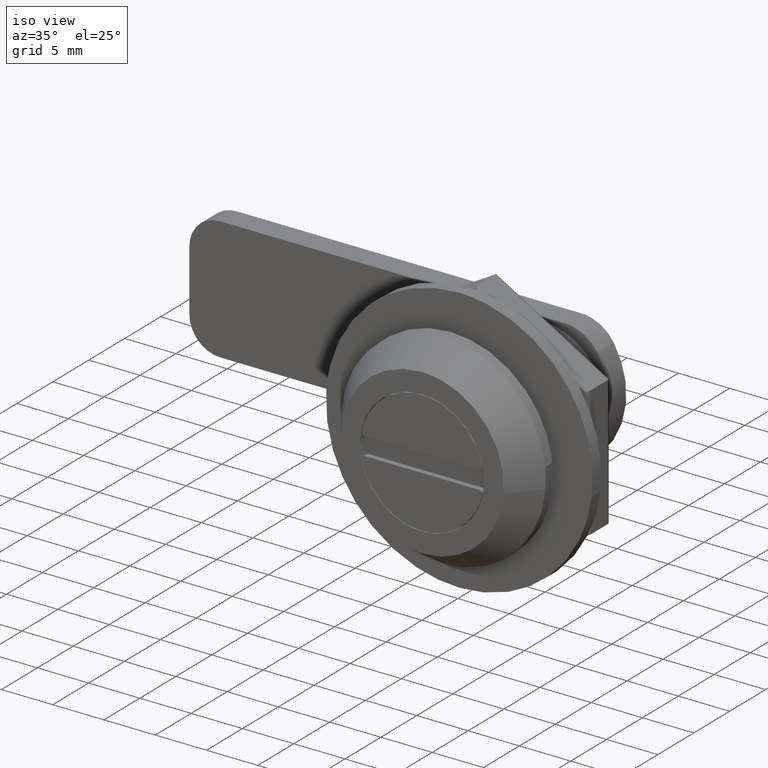
[diagram: clean part render]
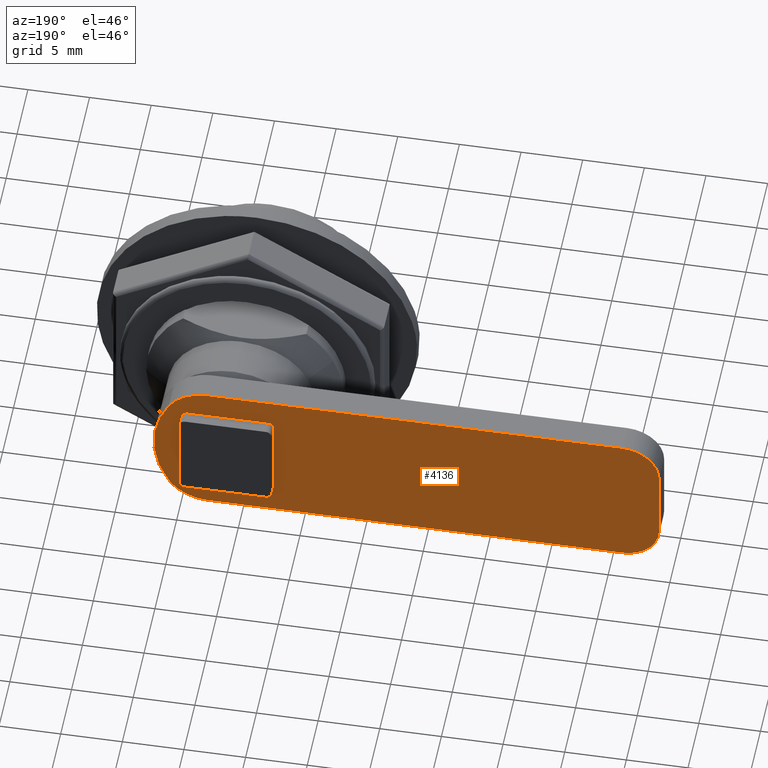
[diagram: tour spotlight — one face highlighted and labeled with its STEP entity id]
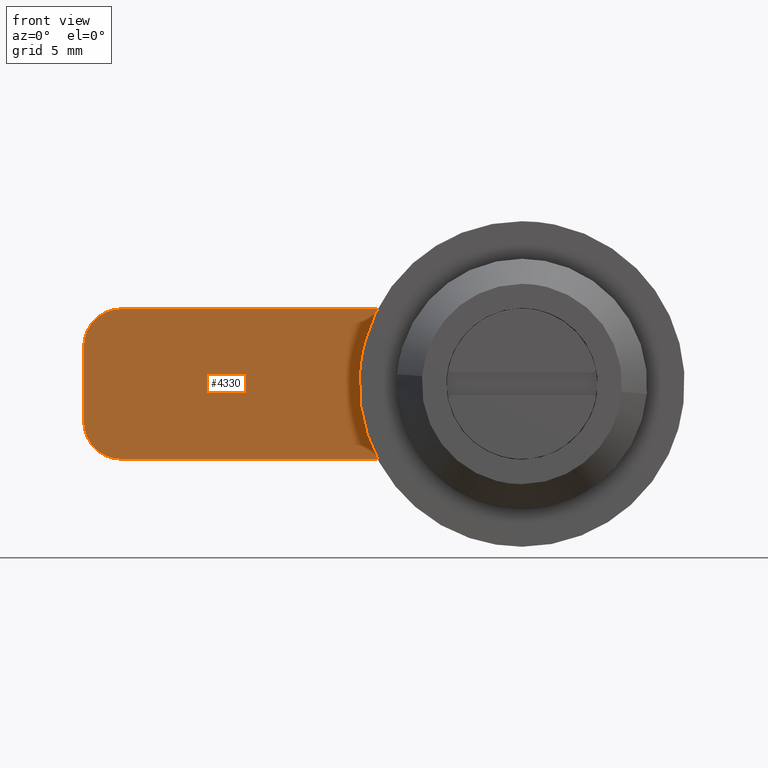
[diagram: tour spotlight — one face highlighted and labeled with its STEP entity id]
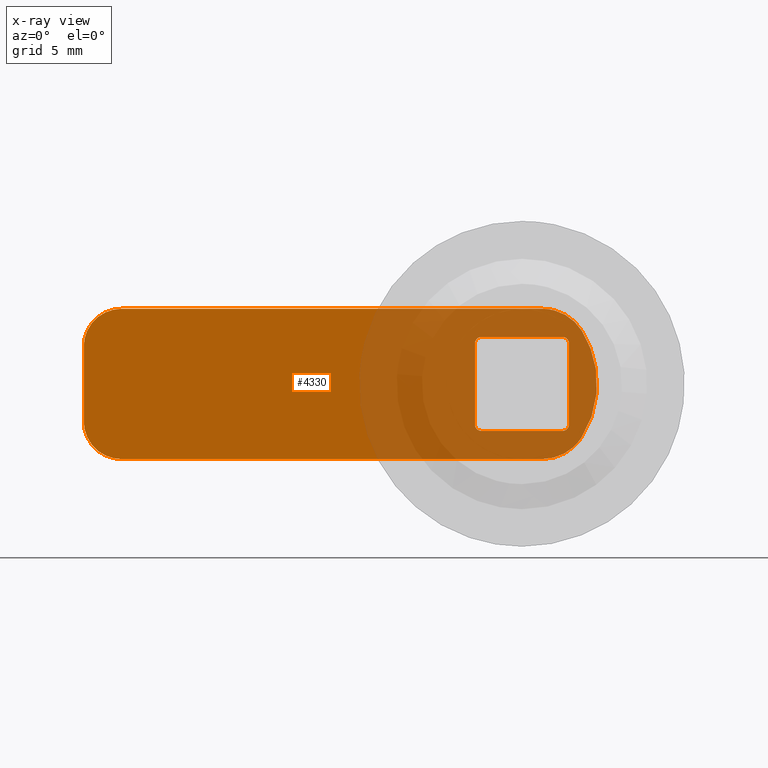
[diagram: x-ray of the same camera — body ghosted, this tour face saturated]
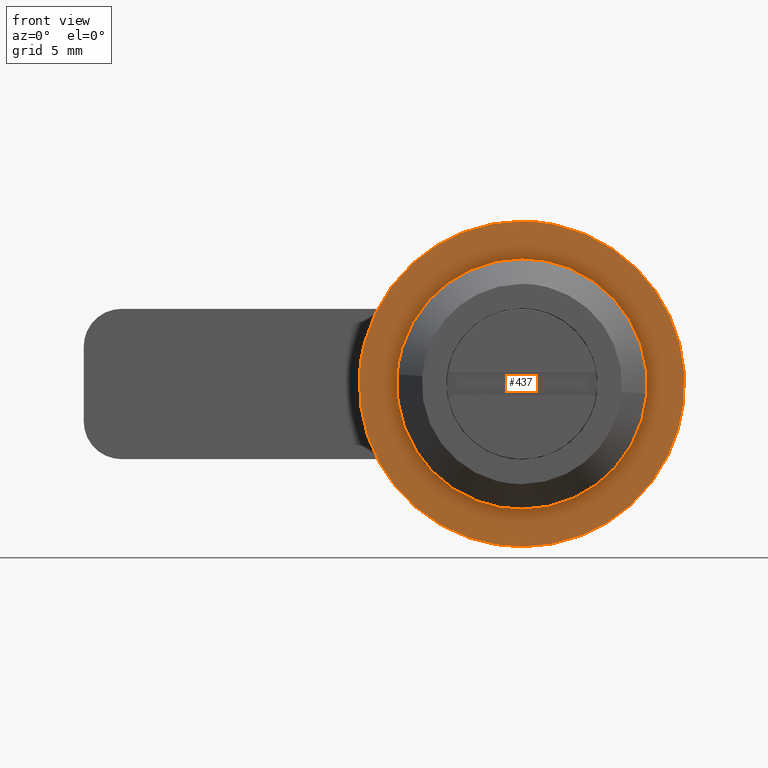
[diagram: tour spotlight — one face highlighted and labeled with its STEP entity id]
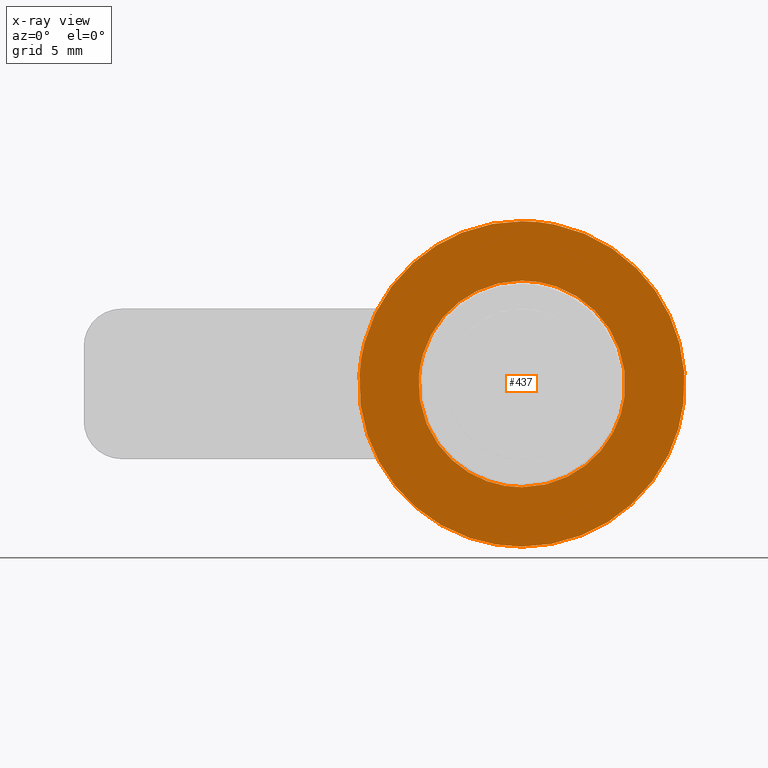
[diagram: x-ray of the same camera — body ghosted, this tour face saturated]
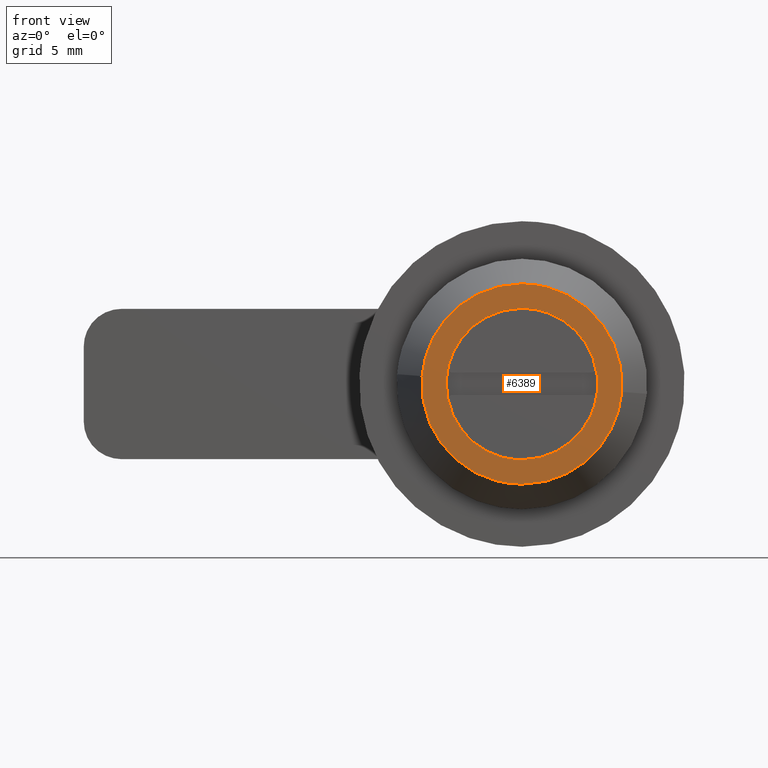
[diagram: tour spotlight — one face highlighted and labeled with its STEP entity id]
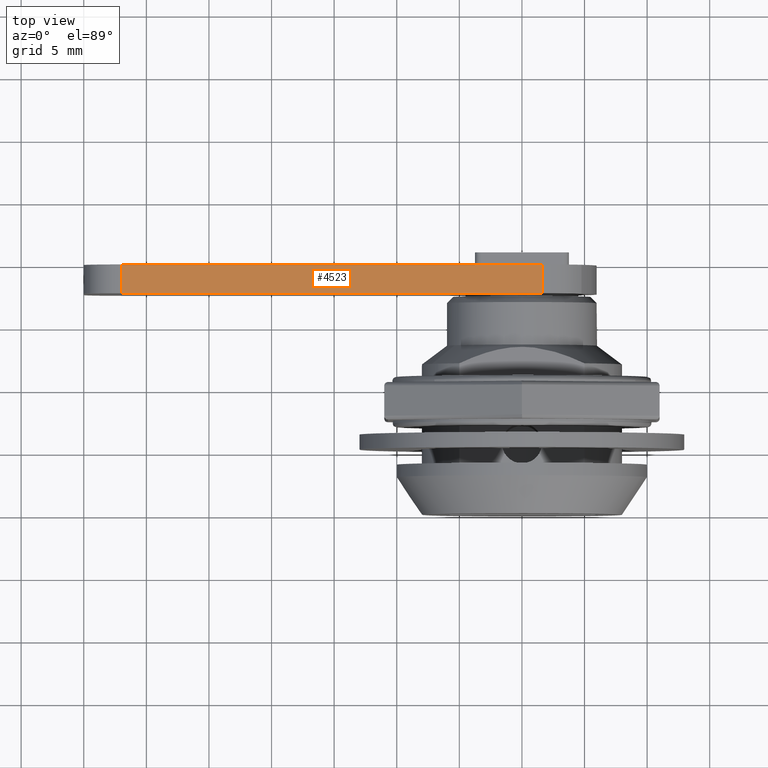
[diagram: tour spotlight — one face highlighted and labeled with its STEP entity id]
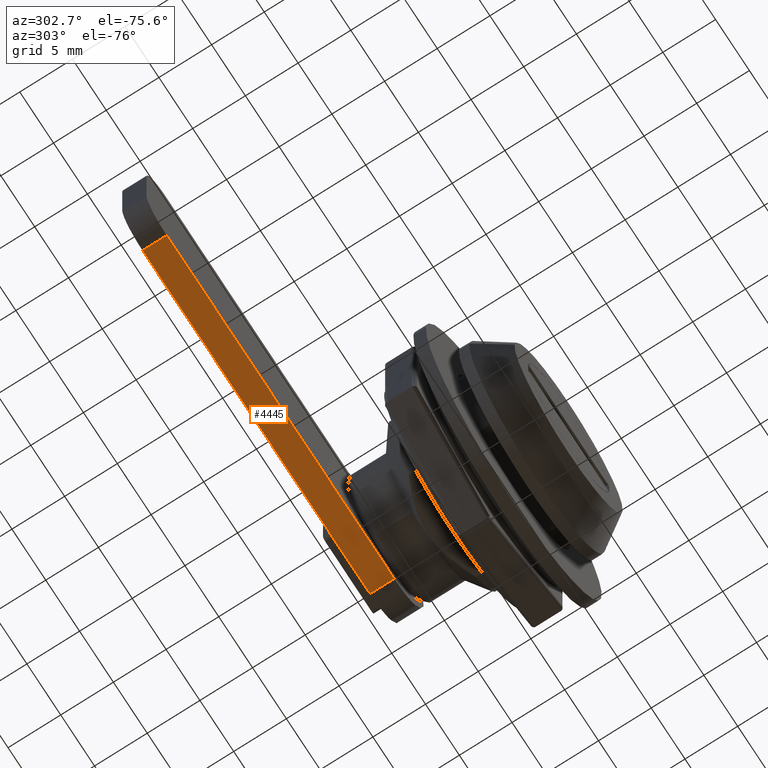
[diagram: tour spotlight — one face highlighted and labeled with its STEP entity id]
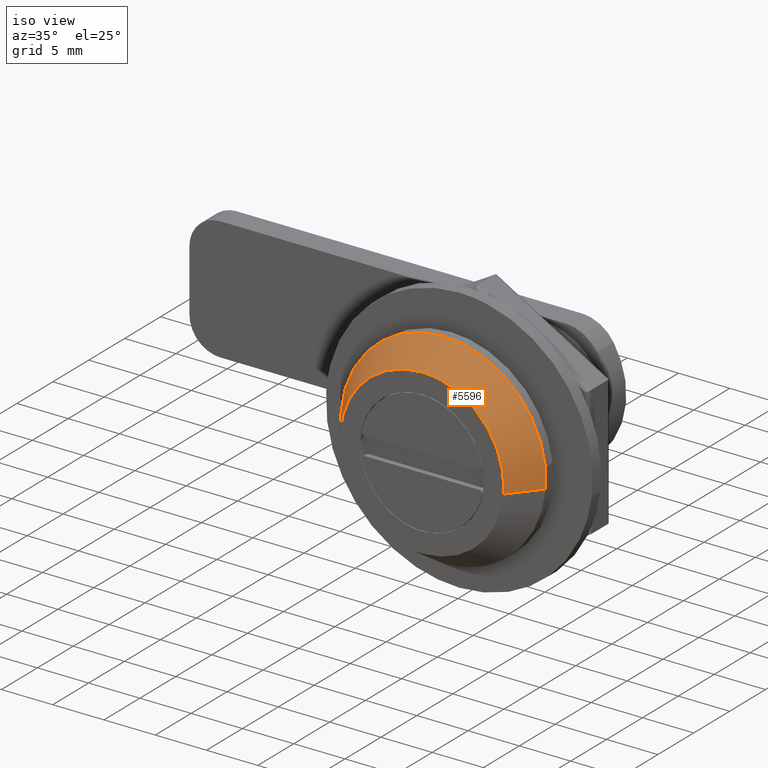
[diagram: tour spotlight — one face highlighted and labeled with its STEP entity id]
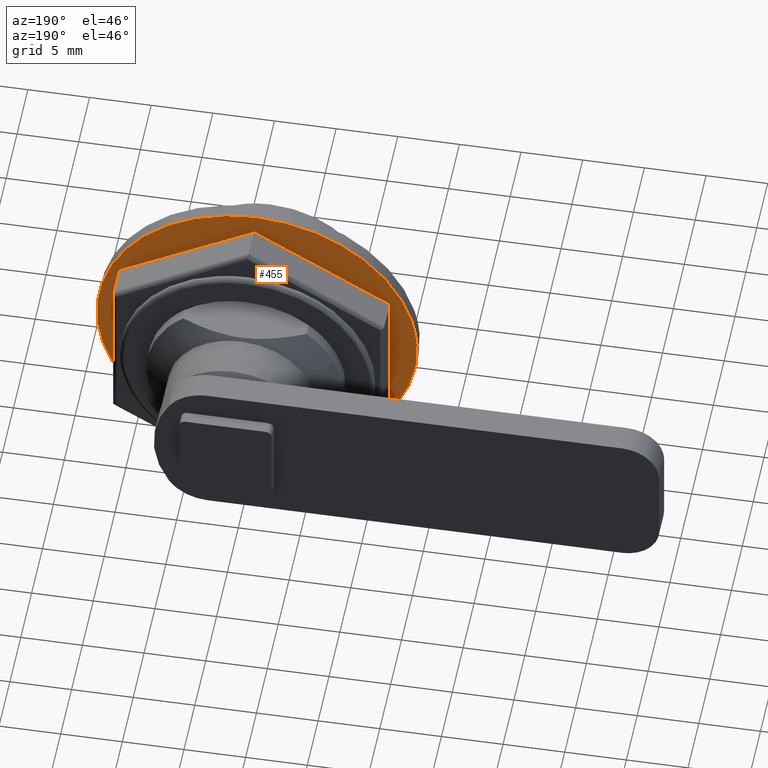
[diagram: tour spotlight — one face highlighted and labeled with its STEP entity id]
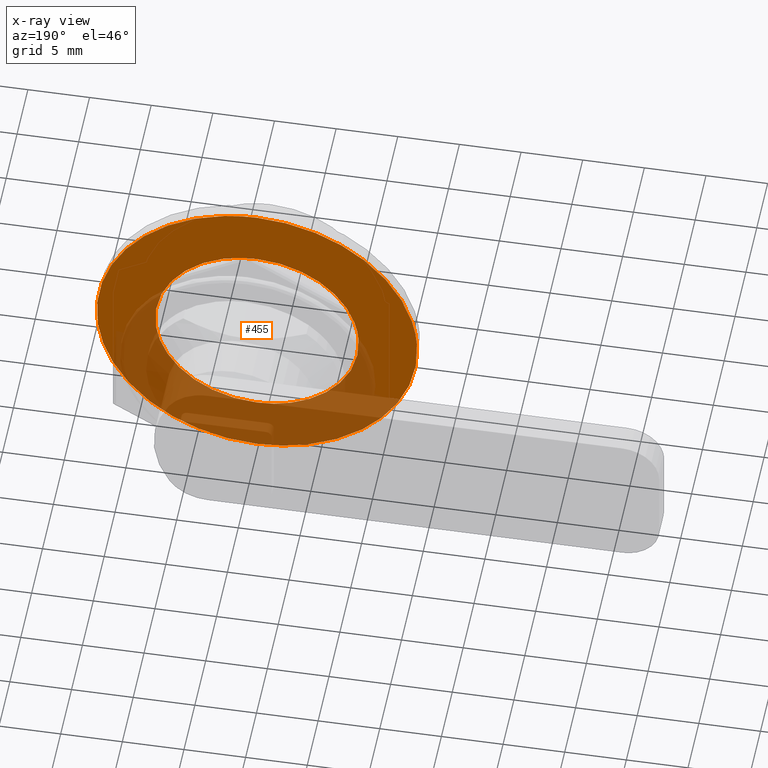
[diagram: x-ray of the same camera — body ghosted, this tour face saturated]
A machine part: a face-by-face anatomy tour. The part has 114 B-rep faces; the first image is the clean iso view, then the 8 largest visible faces are spotlighted one at a time (largest first), each with its STEP entity span.

Face 1 — auxiliary view, entity #4136. In plain terms, the highlighted face is a freeform B-spline surface patch.
Definition (entity closure, byte-faithful):
#3943=CARTESIAN_POINT('',(-37.047949916427591,19.899999999999999,6.599399976741672));
#3944=CARTESIAN_POINT('',(8.047950933921808,19.899999999999999,6.599399976741672));
#3945=CARTESIAN_POINT('',(-37.047949916427591,19.899999999999999,-6.599400298606754));
#3946=CARTESIAN_POINT('',(8.047950933921808,19.899999999999999,-6.599400298606754));
#3947=B_SPLINE_SURFACE_WITH_KNOTS('',1,1,((#3943,#3945),(#3944,#3946)),.UNSPECIFIED.,.F.,.F.,.U.,(2,2),(2,2),(0.0,45.095900850349402),(0.0,13.198800275348431),.UNSPECIFIED.);
#3948=CARTESIAN_POINT('',(1.633179999999810,19.899999999999999,6.0));
#3949=VERTEX_POINT('',#3948);
#3950=CARTESIAN_POINT('',(-32.0,19.899999999999999,5.999999999999920));
#3951=VERTEX_POINT('',#3950);
#3952=CARTESIAN_POINT('',(1.633179999999810,19.899999999999999,6.0));
#3953=CARTESIAN_POINT('',(-32.0,19.899999999999999,5.999999999999920));
#3954=QUASI_UNIFORM_CURVE('',1,(#3952,#3953),.UNSPECIFIED.,.F.,.U.);
#3955=EDGE_CURVE('',#3949,#3951,#3954,.T.);
#3956=ORIENTED_EDGE('',*,*,#3955,.F.);
#3957=CARTESIAN_POINT('',(4.759405441523630,19.899999999999999,4.279069767729991));
#3958=VERTEX_POINT('',#3957);
#3959=CARTESIAN_POINT('',(4.759405441523630,19.899999999999999,4.279069767729991));
#3960=CARTESIAN_POINT('',(3.669963113338592,19.900000000000006,6.000000000000001));
#3961=CARTESIAN_POINT('',(1.633179999999810,19.899999999999999,6.0));
#3969=(BOUNDED_CURVE()B_SPLINE_CURVE(2,(#3959,#3960,#3961),.UNSPECIFIED.,.F.,.U.)CURVE()GEOMETRIC_REPRESENTATION_ITEM()QUASI_UNIFORM_CURVE()RATIONAL_B_SPLINE_CURVE((1.0,0.876037575993902,1.0))REPRESENTATION_ITEM(''));
#3970=EDGE_CURVE('',#3958,#3949,#3969,.T.);
#3971=ORIENTED_EDGE('',*,*,#3970,.F.);
#3972=CARTESIAN_POINT('',(4.759405016704490,19.899999999999999,-4.279069767575105));
#3973=VERTEX_POINT('',#3972);
#3974=CARTESIAN_POINT('',(4.759405016704490,19.899999999999999,-4.279069767575105));
#3975=CARTESIAN_POINT('',(7.468288465417921,19.900000000000002,-0.000000134389328));
#3976=CARTESIAN_POINT('',(4.759405441523630,19.899999999999999,4.279069767729984));
#3984=(BOUNDED_CURVE()B_SPLINE_CURVE(2,(#3974,#3975,#3976),.UNSPECIFIED.,.F.,.U.)CURVE()GEOMETRIC_REPRESENTATION_ITEM()QUASI_UNIFORM_CURVE()RATIONAL_B_SPLINE_CURVE((1.0,0.844925672598515,1.0))REPRESENTATION_ITEM(''));
#3985=EDGE_CURVE('',#3973,#3958,#3984,.T.);
#3986=ORIENTED_EDGE('',*,*,#3985,.F.);
#3987=CARTESIAN_POINT('',(1.633179999999810,19.899999999999999,-6.0));
#3988=VERTEX_POINT('',#3987);
#3989=CARTESIAN_POINT('',(1.633179999999810,19.899999999999999,-6.0));
#3990=CARTESIAN_POINT('',(3.669962965380830,19.900000000000002,-6.0));
#3991=CARTESIAN_POINT('',(4.759405016704495,19.899999999999999,-4.279069767575107));
#3999=(BOUNDED_CURVE()B_SPLINE_CURVE(2,(#3989,#3990,#3991),.UNSPECIFIED.,.F.,.U.)CURVE()GEOMETRIC_REPRESENTATION_ITEM()QUASI_UNIFORM_CURVE()RATIONAL_B_SPLINE_CURVE((1.0,0.876037590793410,1.0))REPRESENTATION_ITEM(''));
#4000=EDGE_CURVE('',#3988,#3973,#3999,.T.);
#4001=ORIENTED_EDGE('',*,*,#4000,.F.);
#4002=CARTESIAN_POINT('',(-32.0,19.899999999999999,-6.0));
#4003=VERTEX_POINT('',#4002);
#4004=CARTESIAN_POINT('',(-32.0,19.899999999999999,-6.0));
#4005=CARTESIAN_POINT('',(1.633179999999810,19.899999999999999,-6.0));
#4006=QUASI_UNIFORM_CURVE('',1,(#4004,#4005),.UNSPECIFIED.,.F.,.U.);
#4007=EDGE_CURVE('',#4003,#3988,#4006,.T.);
#4008=ORIENTED_EDGE('',*,*,#4007,.F.);
#4009=CARTESIAN_POINT('',(-35.0,19.899999999999999,-3.0));
#4010=VERTEX_POINT('',#4009);
#4011=CARTESIAN_POINT('',(-35.0,19.899999999999999,-3.0));
#4012=CARTESIAN_POINT('',(-34.999999999999993,19.900000000000006,-6.0));
#4013=CARTESIAN_POINT('',(-32.0,19.899999999999999,-6.0));
#4021=(BOUNDED_CURVE()B_SPLINE_CURVE(2,(#4011,#4012,#4013),.UNSPECIFIED.,.F.,.U.)CURVE()GEOMETRIC_REPRESENTATION_ITEM()QUASI_UNIFORM_CURVE()RATIONAL_B_SPLINE_CURVE((1.0,0.707106781186548,1.0))REPRESENTATION_ITEM(''));
#4022=EDGE_CURVE('',#4010,#4003,#4021,.T.);
#4023=ORIENTED_EDGE('',*,*,#4022,.F.);
#4024=CARTESIAN_POINT('',(-35.0,19.899999999999999,2.999999999999915));
#4025=VERTEX_POINT('',#4024);
#4026=CARTESIAN_POINT('',(-35.0,19.899999999999999,2.999999999999915));
#4027=CARTESIAN_POINT('',(-35.0,19.899999999999999,-3.0));
#4028=QUASI_UNIFORM_CURVE('',1,(#4026,#4027),.UNSPECIFIED.,.F.,.U.);
#4029=EDGE_CURVE('',#4025,#4010,#4028,.T.);
#4030=ORIENTED_EDGE('',*,*,#4029,.F.);
#4031=CARTESIAN_POINT('',(-32.0,19.899999999999999,5.999999999999915));
#4032=CARTESIAN_POINT('',(-34.999999999999993,19.900000000000006,5.999999999999914));
#4033=CARTESIAN_POINT('',(-35.0,19.899999999999999,2.999999999999915));
#4041=(BOUNDED_CURVE()B_SPLINE_CURVE(2,(#4031,#4032,#4033),.UNSPECIFIED.,.F.,.U.)CURVE()GEOMETRIC_REPRESENTATION_ITEM()QUASI_UNIFORM_CURVE()RATIONAL_B_SPLINE_CURVE((1.0,0.707106781186548,1.0))REPRESENTATION_ITEM(''));
#4042=EDGE_CURVE('',#3951,#4025,#4041,.T.);
#4043=ORIENTED_EDGE('',*,*,#4042,.F.);
#4044=EDGE_LOOP('',(#3956,#3971,#3986,#4001,#4008,#4023,#4030,#4043));
#4045=FACE_OUTER_BOUND('',#4044,.T.);
#4046=CARTESIAN_POINT('',(3.750000000000000,19.899999999999999,3.250000000000000));
#4047=VERTEX_POINT('',#4046);
#4048=CARTESIAN_POINT('',(3.250000000000000,19.899999999999999,3.749999999999915));
#4049=VERTEX_POINT('',#4048);
#4050=CARTESIAN_POINT('',(3.750000000000000,19.899999999999999,3.250000000000000));
#4051=CARTESIAN_POINT('',(3.749999999999999,19.900000000000006,3.749999999999999));
#4052=CARTESIAN_POINT('',(3.250000000000000,19.899999999999999,3.749999999999915));
#4060=(BOUNDED_CURVE()B_SPLINE_CURVE(2,(#4050,#4051,#4052),.UNSPECIFIED.,.F.,.U.)CURVE()GEOMETRIC_REPRESENTATION_ITEM()QUASI_UNIFORM_CURVE()RATIONAL_B_SPLINE_CURVE((1.0,0.707106781186548,1.0))REPRESENTATION_ITEM(''));
#4061=EDGE_CURVE('',#4047,#4049,#4060,.T.);
#4062=ORIENTED_EDGE('',*,*,#4061,.T.);
#4063=CARTESIAN_POINT('',(-3.250000000000200,19.899999999999999,3.750000000000000));
#4064=VERTEX_POINT('',#4063);
#4065=CARTESIAN_POINT('',(-3.250000000000200,19.899999999999999,3.750000000000000));
#4066=CARTESIAN_POINT('',(3.250000000000000,19.899999999999999,3.749999999999915));
#4067=QUASI_UNIFORM_CURVE('',1,(#4065,#4066),.UNSPECIFIED.,.F.,.U.);
#4068=EDGE_CURVE('',#4064,#4049,#4067,.T.);
#4069=ORIENTED_EDGE('',*,*,#4068,.F.);
#4070=CARTESIAN_POINT('',(-3.750000000000085,19.899999999999999,3.250000000000000));
#4071=VERTEX_POINT('',#4070);
#4072=CARTESIAN_POINT('',(-3.250000000000200,19.899999999999999,3.750000000000000));
#4073=CARTESIAN_POINT('',(-3.750000000000200,19.900000000000006,3.749999999999999));
#4074=CARTESIAN_POINT('',(-3.750000000000085,19.899999999999999,3.250000000000000));
#4082=(BOUNDED_CURVE()B_SPLINE_CURVE(2,(#4072,#4073,#4074),.UNSPECIFIED.,.F.,.U.)CURVE()GEOMETRIC_REPRESENTATION_ITEM()QUASI_UNIFORM_CURVE()RATIONAL_B_SPLINE_CURVE((1.0,0.707106781186548,1.0))REPRESENTATION_ITEM(''));
#4083=EDGE_CURVE('',#4064,#4071,#4082,.T.);
#4084=ORIENTED_EDGE('',*,*,#4083,.T.);
#4085=CARTESIAN_POINT('',(-3.750000000000200,19.899999999999999,-3.250000000000085));
#4086=VERTEX_POINT('',#4085);
#4087=CARTESIAN_POINT('',(-3.750000000000200,19.899999999999999,-3.250000000000085));
#4088=CARTESIAN_POINT('',(-3.750000000000085,19.899999999999999,3.250000000000000));
#4089=QUASI_UNIFORM_CURVE('',1,(#4087,#4088),.UNSPECIFIED.,.F.,.U.);
#4090=EDGE_CURVE('',#4086,#4071,#4089,.T.);
#4091=ORIENTED_EDGE('',*,*,#4090,.F.);
#4092=CARTESIAN_POINT('',(-3.250000000000200,19.899999999999999,-3.750000000000085));
#4093=VERTEX_POINT('',#4092);
#4094=CARTESIAN_POINT('',(-3.750000000000200,19.899999999999999,-3.250000000000085));
#4095=CARTESIAN_POINT('',(-3.750000000000200,19.900000000000006,-3.750000000000084));
#4096=CARTESIAN_POINT('',(-3.250000000000200,19.899999999999999,-3.750000000000085));
#4104=(BOUNDED_CURVE()B_SPLINE_CURVE(2,(#4094,#4095,#4096),.UNSPECIFIED.,.F.,.U.)CURVE()GEOMETRIC_REPRESENTATION_ITEM()QUASI_UNIFORM_CURVE()RATIONAL_B_SPLINE_CURVE((1.0,0.707106781186548,1.0))REPRESENTATION_ITEM(''));
#4105=EDGE_CURVE('',#4086,#4093,#4104,.T.);
#4106=ORIENTED_EDGE('',*,*,#4105,.T.);
#4107=CARTESIAN_POINT('',(3.250000000000000,19.899999999999999,-3.750000000000085));
#4108=VERTEX_POINT('',#4107);
#4109=CARTESIAN_POINT('',(3.250000000000000,19.899999999999999,-3.750000000000085));
#4110=CARTESIAN_POINT('',(-3.250000000000200,19.899999999999999,-3.750000000000085));
#4111=QUASI_UNIFORM_CURVE('',1,(#4109,#4110),.UNSPECIFIED.,.F.,.U.);
#4112=EDGE_CURVE('',#4108,#4093,#4111,.T.);
#4113=ORIENTED_EDGE('',*,*,#4112,.F.);
#4114=CARTESIAN_POINT('',(3.750000000000000,19.899999999999999,-3.250000000000085));
#4115=VERTEX_POINT('',#4114);
#4116=CARTESIAN_POINT('',(3.250000000000000,19.899999999999999,-3.750000000000085));
#4117=CARTESIAN_POINT('',(3.749999999999999,19.900000000000006,-3.750000000000084));
#4118=CARTESIAN_POINT('',(3.750000000000000,19.899999999999999,-3.250000000000085));
#4126=(BOUNDED_CURVE()B_SPLINE_CURVE(2,(#4116,#4117,#4118),.UNSPECIFIED.,.F.,.U.)CURVE()GEOMETRIC_REPRESENTATION_ITEM()QUASI_UNIFORM_CURVE()RATIONAL_B_SPLINE_CURVE((1.0,0.707106781186548,1.0))REPRESENTATION_ITEM(''));
#4127=EDGE_CURVE('',#4108,#4115,#4126,.T.);
#4128=ORIENTED_EDGE('',*,*,#4127,.T.);
#4129=CARTESIAN_POINT('',(3.750000000000000,19.899999999999999,3.250000000000000));
#4130=CARTESIAN_POINT('',(3.750000000000000,19.899999999999999,-3.250000000000085));
#4131=QUASI_UNIFORM_CURVE('',1,(#4129,#4130),.UNSPECIFIED.,.F.,.U.);
#4132=EDGE_CURVE('',#4047,#4115,#4131,.T.);
#4133=ORIENTED_EDGE('',*,*,#4132,.F.);
#4134=EDGE_LOOP('',(#4062,#4069,#4084,#4091,#4106,#4113,#4128,#4133));
#4135=FACE_BOUND('',#4134,.T.);
#4136=ADVANCED_FACE('',(#4045,#4135),#3947,.T.);

Face 2 — front view, entity #4330. An x-ray twin of the same camera follows (body ghosted, this face saturated) — the face is partly hidden behind the body. In plain terms, the highlighted face is a freeform B-spline surface patch.
Definition (entity closure, byte-faithful):
#4137=CARTESIAN_POINT('',(-37.047949916427591,17.600000000000001,6.599399976741672));
#4138=CARTESIAN_POINT('',(8.047950933921808,17.600000000000001,6.599399976741672));
#4139=CARTESIAN_POINT('',(-37.047949916427591,17.600000000000001,-6.599400298606754));
#4140=CARTESIAN_POINT('',(8.047950933921808,17.600000000000001,-6.599400298606754));
#4141=B_SPLINE_SURFACE_WITH_KNOTS('',1,1,((#4137,#4139),(#4138,#4140)),.UNSPECIFIED.,.F.,.F.,.U.,(2,2),(2,2),(0.0,45.095900850349402),(0.0,13.198800275348431),.UNSPECIFIED.);
#4142=CARTESIAN_POINT('',(1.633179999999810,17.600000000000001,6.0));
#4143=VERTEX_POINT('',#4142);
#4144=CARTESIAN_POINT('',(-32.0,17.600000000000001,5.999999999999920));
#4145=VERTEX_POINT('',#4144);
#4146=CARTESIAN_POINT('',(1.633179999999810,17.600000000000001,6.0));
#4147=CARTESIAN_POINT('',(-32.0,17.600000000000001,5.999999999999920));
#4148=QUASI_UNIFORM_CURVE('',1,(#4146,#4147),.UNSPECIFIED.,.F.,.U.);
#4149=EDGE_CURVE('',#4143,#4145,#4148,.T.);
#4150=ORIENTED_EDGE('',*,*,#4149,.T.);
#4151=CARTESIAN_POINT('',(-35.0,17.600000000000001,2.999999999999915));
#4152=VERTEX_POINT('',#4151);
#4153=CARTESIAN_POINT('',(-32.0,17.600000000000001,5.999999999999915));
#4154=CARTESIAN_POINT('',(-34.999999999999993,17.600000000000005,5.999999999999914));
#4155=CARTESIAN_POINT('',(-35.0,17.600000000000001,2.999999999999915));
#4163=(BOUNDED_CURVE()B_SPLINE_CURVE(2,(#4153,#4154,#4155),.UNSPECIFIED.,.F.,.U.)CURVE()GEOMETRIC_REPRESENTATION_ITEM()QUASI_UNIFORM_CURVE()RATIONAL_B_SPLINE_CURVE((1.0,0.707106781186548,1.0))REPRESENTATION_ITEM(''));
#4164=EDGE_CURVE('',#4145,#4152,#4163,.T.);
#4165=ORIENTED_EDGE('',*,*,#4164,.T.);
#4166=CARTESIAN_POINT('',(-35.0,17.600000000000001,-3.0));
#4167=VERTEX_POINT('',#4166);
#4168=CARTESIAN_POINT('',(-35.0,17.600000000000001,2.999999999999915));
#4169=CARTESIAN_POINT('',(-35.0,17.600000000000001,-3.0));
#4170=QUASI_UNIFORM_CURVE('',1,(#4168,#4169),.UNSPECIFIED.,.F.,.U.);
#4171=EDGE_CURVE('',#4152,#4167,#4170,.T.);
#4172=ORIENTED_EDGE('',*,*,#4171,.T.);
#4173=CARTESIAN_POINT('',(-32.0,17.600000000000001,-6.0));
#4174=VERTEX_POINT('',#4173);
#4175=CARTESIAN_POINT('',(-35.0,17.600000000000001,-3.0));
#4176=CARTESIAN_POINT('',(-34.999999999999993,17.600000000000005,-6.0));
#4177=CARTESIAN_POINT('',(-32.0,17.600000000000001,-6.0));
#4185=(BOUNDED_CURVE()B_SPLINE_CURVE(2,(#4175,#4176,#4177),.UNSPECIFIED.,.F.,.U.)CURVE()GEOMETRIC_REPRESENTATION_ITEM()QUASI_UNIFORM_CURVE()RATIONAL_B_SPLINE_CURVE((1.0,0.707106781186548,1.0))REPRESENTATION_ITEM(''));
#4186=EDGE_CURVE('',#4167,#4174,#4185,.T.);
#4187=ORIENTED_EDGE('',*,*,#4186,.T.);
#4188=CARTESIAN_POINT('',(1.633179999999810,17.600000000000001,-6.0));
#4189=VERTEX_POINT('',#4188);
#4190=CARTESIAN_POINT('',(-32.0,17.600000000000001,-6.0));
#4191=CARTESIAN_POINT('',(1.633179999999810,17.600000000000001,-6.0));
#4192=QUASI_UNIFORM_CURVE('',1,(#4190,#4191),.UNSPECIFIED.,.F.,.U.);
#4193=EDGE_CURVE('',#4174,#4189,#4192,.T.);
#4194=ORIENTED_EDGE('',*,*,#4193,.T.);
#4195=CARTESIAN_POINT('',(4.759405016704490,17.600000000000001,-4.279069767575105));
#4196=VERTEX_POINT('',#4195);
#4197=CARTESIAN_POINT('',(1.633179999999810,17.600000000000001,-6.0));
#4198=CARTESIAN_POINT('',(3.669962965380830,17.599999999999998,-6.0));
#4199=CARTESIAN_POINT('',(4.759405016704495,17.600000000000001,-4.279069767575107));
#4207=(BOUNDED_CURVE()B_SPLINE_CURVE(2,(#4197,#4198,#4199),.UNSPECIFIED.,.F.,.U.)CURVE()GEOMETRIC_REPRESENTATION_ITEM()QUASI_UNIFORM_CURVE()RATIONAL_B_SPLINE_CURVE((1.0,0.876037590793410,1.0))REPRESENTATION_ITEM(''));
#4208=EDGE_CURVE('',#4189,#4196,#4207,.T.);
#4209=ORIENTED_EDGE('',*,*,#4208,.T.);
#4210=CARTESIAN_POINT('',(4.759405441523630,17.600000000000001,4.279069767729991));
#4211=VERTEX_POINT('',#4210);
#4212=CARTESIAN_POINT('',(4.759405016704490,17.600000000000001,-4.279069767575105));
#4213=CARTESIAN_POINT('',(7.468288465417921,17.600000000000001,-0.000000134389328));
#4214=CARTESIAN_POINT('',(4.759405441523630,17.600000000000001,4.279069767729984));
#4222=(BOUNDED_CURVE()B_SPLINE_CURVE(2,(#4212,#4213,#4214),.UNSPECIFIED.,.F.,.U.)CURVE()GEOMETRIC_REPRESENTATION_ITEM()QUASI_UNIFORM_CURVE()RATIONAL_B_SPLINE_CURVE((1.0,0.844925672598515,1.0))REPRESENTATION_ITEM(''));
#4223=EDGE_CURVE('',#4196,#4211,#4222,.T.);
#4224=ORIENTED_EDGE('',*,*,#4223,.T.);
#4225=CARTESIAN_POINT('',(4.759405441523630,17.600000000000001,4.279069767729991));
#4226=CARTESIAN_POINT('',(3.669963113338592,17.600000000000009,6.000000000000001));
#4227=CARTESIAN_POINT('',(1.633179999999810,17.600000000000001,6.0));
#4235=(BOUNDED_CURVE()B_SPLINE_CURVE(2,(#4225,#4226,#4227),.UNSPECIFIED.,.F.,.U.)CURVE()GEOMETRIC_REPRESENTATION_ITEM()QUASI_UNIFORM_CURVE()RATIONAL_B_SPLINE_CURVE((1.0,0.876037575993902,1.0))REPRESENTATION_ITEM(''));
#4236=EDGE_CURVE('',#4211,#4143,#4235,.T.);
#4237=ORIENTED_EDGE('',*,*,#4236,.T.);
#4238=EDGE_LOOP('',(#4150,#4165,#4172,#4187,#4194,#4209,#4224,#4237));
#4239=FACE_OUTER_BOUND('',#4238,.T.);
#4240=CARTESIAN_POINT('',(3.750000000000000,17.600000000000001,3.250000000000000));
#4241=VERTEX_POINT('',#4240);
#4242=CARTESIAN_POINT('',(3.250000000000000,17.600000000000001,3.749999999999915));
#4243=VERTEX_POINT('',#4242);
#4244=CARTESIAN_POINT('',(3.750000000000000,17.600000000000001,3.250000000000000));
#4245=CARTESIAN_POINT('',(3.749999999999999,17.600000000000005,3.749999999999999));
#4246=CARTESIAN_POINT('',(3.250000000000000,17.600000000000001,3.749999999999915));
#4254=(BOUNDED_CURVE()B_SPLINE_CURVE(2,(#4244,#4245,#4246),.UNSPECIFIED.,.F.,.U.)CURVE()GEOMETRIC_REPRESENTATION_ITEM()QUASI_UNIFORM_CURVE()RATIONAL_B_SPLINE_CURVE((1.0,0.707106781186548,1.0))REPRESENTATION_ITEM(''));
#4255=EDGE_CURVE('',#4241,#4243,#4254,.T.);
#4256=ORIENTED_EDGE('',*,*,#4255,.F.);
#4257=CARTESIAN_POINT('',(3.750000000000000,17.600000000000001,-3.250000000000085));
#4258=VERTEX_POINT('',#4257);
#4259=CARTESIAN_POINT('',(3.750000000000000,17.600000000000001,3.250000000000000));
#4260=CARTESIAN_POINT('',(3.750000000000000,17.600000000000001,-3.250000000000085));
#4261=QUASI_UNIFORM_CURVE('',1,(#4259,#4260),.UNSPECIFIED.,.F.,.U.);
#4262=EDGE_CURVE('',#4241,#4258,#4261,.T.);
#4263=ORIENTED_EDGE('',*,*,#4262,.T.);
#4264=CARTESIAN_POINT('',(3.250000000000000,17.600000000000001,-3.750000000000085));
#4265=VERTEX_POINT('',#4264);
#4266=CARTESIAN_POINT('',(3.250000000000000,17.600000000000001,-3.750000000000085));
#4267=CARTESIAN_POINT('',(3.749999999999999,17.600000000000005,-3.750000000000084));
#4268=CARTESIAN_POINT('',(3.750000000000000,17.600000000000001,-3.250000000000085));
#4276=(BOUNDED_CURVE()B_SPLINE_CURVE(2,(#4266,#4267,#4268),.UNSPECIFIED.,.F.,.U.)CURVE()GEOMETRIC_REPRESENTATION_ITEM()QUASI_UNIFORM_CURVE()RATIONAL_B_SPLINE_CURVE((1.0,0.707106781186548,1.0))REPRESENTATION_ITEM(''));
#4277=EDGE_CURVE('',#4265,#4258,#4276,.T.);
#4278=ORIENTED_EDGE('',*,*,#4277,.F.);
#4279=CARTESIAN_POINT('',(-3.250000000000200,17.600000000000001,-3.750000000000085));
#4280=VERTEX_POINT('',#4279);
#4281=CARTESIAN_POINT('',(3.250000000000000,17.600000000000001,-3.750000000000085));
#4282=CARTESIAN_POINT('',(-3.250000000000200,17.600000000000001,-3.750000000000085));
#4283=QUASI_UNIFORM_CURVE('',1,(#4281,#4282),.UNSPECIFIED.,.F.,.U.);
#4284=EDGE_CURVE('',#4265,#4280,#4283,.T.);
#4285=ORIENTED_EDGE('',*,*,#4284,.T.);
#4286=CARTESIAN_POINT('',(-3.750000000000200,17.600000000000001,-3.250000000000085));
#4287=VERTEX_POINT('',#4286);
#4288=CARTESIAN_POINT('',(-3.750000000000200,17.600000000000001,-3.250000000000085));
#4289=CARTESIAN_POINT('',(-3.750000000000200,17.600000000000005,-3.750000000000084));
#4290=CARTESIAN_POINT('',(-3.250000000000200,17.600000000000001,-3.750000000000085));
#4298=(BOUNDED_CURVE()B_SPLINE_CURVE(2,(#4288,#4289,#4290),.UNSPECIFIED.,.F.,.U.)CURVE()GEOMETRIC_REPRESENTATION_ITEM()QUASI_UNIFORM_CURVE()RATIONAL_B_SPLINE_CURVE((1.0,0.707106781186548,1.0))REPRESENTATION_ITEM(''));
#4299=EDGE_CURVE('',#4287,#4280,#4298,.T.);
#4300=ORIENTED_EDGE('',*,*,#4299,.F.);
#4301=CARTESIAN_POINT('',(-3.750000000000085,17.600000000000001,3.250000000000000));
#4302=VERTEX_POINT('',#4301);
#4303=CARTESIAN_POINT('',(-3.750000000000200,17.600000000000001,-3.250000000000085));
#4304=CARTESIAN_POINT('',(-3.750000000000085,17.600000000000001,3.250000000000000));
#4305=QUASI_UNIFORM_CURVE('',1,(#4303,#4304),.UNSPECIFIED.,.F.,.U.);
#4306=EDGE_CURVE('',#4287,#4302,#4305,.T.);
#4307=ORIENTED_EDGE('',*,*,#4306,.T.);
#4308=CARTESIAN_POINT('',(-3.250000000000200,17.600000000000001,3.750000000000000));
#4309=VERTEX_POINT('',#4308);
#4310=CARTESIAN_POINT('',(-3.250000000000200,17.600000000000001,3.750000000000000));
#4311=CARTESIAN_POINT('',(-3.750000000000200,17.600000000000005,3.749999999999999));
#4312=CARTESIAN_POINT('',(-3.750000000000085,17.600000000000001,3.250000000000000));
#4320=(BOUNDED_CURVE()B_SPLINE_CURVE(2,(#4310,#4311,#4312),.UNSPECIFIED.,.F.,.U.)CURVE()GEOMETRIC_REPRESENTATION_ITEM()QUASI_UNIFORM_CURVE()RATIONAL_B_SPLINE_CURVE((1.0,0.707106781186548,1.0))REPRESENTATION_ITEM(''));
#4321=EDGE_CURVE('',#4309,#4302,#4320,.T.);
#4322=ORIENTED_EDGE('',*,*,#4321,.F.);
#4323=CARTESIAN_POINT('',(-3.250000000000200,17.600000000000001,3.750000000000000));
#4324=CARTESIAN_POINT('',(3.250000000000000,17.600000000000001,3.749999999999915));
#4325=QUASI_UNIFORM_CURVE('',1,(#4323,#4324),.UNSPECIFIED.,.F.,.U.);
#4326=EDGE_CURVE('',#4309,#4243,#4325,.T.);
#4327=ORIENTED_EDGE('',*,*,#4326,.T.);
#4328=EDGE_LOOP('',(#4256,#4263,#4278,#4285,#4300,#4307,#4322,#4327));
#4329=FACE_BOUND('',#4328,.T.);
#4330=ADVANCED_FACE('',(#4239,#4329),#4141,.F.);

Face 3 — front view, entity #437. An x-ray twin of the same camera follows (body ghosted, this face saturated) — the face is partly hidden behind the body. In plain terms, the highlighted face is a freeform B-spline surface patch.
Definition (entity closure, byte-faithful):
#70=CARTESIAN_POINT('',(8.192329706066079,5.199999999999284,-0.973773067515338));
#71=VERTEX_POINT('',#70);
#72=CARTESIAN_POINT('',(0.0,5.199999999999900,8.250000000000000));
#73=VERTEX_POINT('',#72);
#74=CARTESIAN_POINT('',(8.192329706066079,5.199999999999284,-0.973773067515338));
#75=CARTESIAN_POINT('',(8.250000000000000,5.199999999999900,-0.488594253406823));
#76=CARTESIAN_POINT('',(8.250000000000000,5.199999999999900,-3.061516E-016));
#77=CARTESIAN_POINT('',(8.250000000000000,5.199999999999899,8.250000000000000));
#78=CARTESIAN_POINT('',(0.0,5.199999999999900,8.250000000000000));
#86=(BOUNDED_CURVE()B_SPLINE_CURVE(2,(#74,#75,#76,#77,#78),.UNSPECIFIED.,.F.,.U.)B_SPLINE_CURVE_WITH_KNOTS((3,2,3),(0.229562666780675,0.250000000000000,0.500000000000000),.UNSPECIFIED.)CURVE()GEOMETRIC_REPRESENTATION_ITEM()RATIONAL_B_SPLINE_CURVE((0.956027132995606,0.976056174757716,1.0,0.707106781186548,1.0))REPRESENTATION_ITEM(''));
#87=EDGE_CURVE('',#71,#73,#86,.T.);
#89=CARTESIAN_POINT('',(-8.234612965456126,5.199999999999134,0.503636087800313));
#90=VERTEX_POINT('',#89);
#91=CARTESIAN_POINT('',(0.0,5.199999999999900,8.250000000000000));
#92=CARTESIAN_POINT('',(-7.760838614229148,5.199999999999899,8.250000000000000));
#93=CARTESIAN_POINT('',(-8.234612965456126,5.199999999999134,0.503636087800313));
#101=(BOUNDED_CURVE()B_SPLINE_CURVE(2,(#91,#92,#93),.UNSPECIFIED.,.F.,.U.)B_SPLINE_CURVE_WITH_KNOTS((3,3),(0.500000000000000,0.739333263209710),.UNSPECIFIED.)CURVE()GEOMETRIC_REPRESENTATION_ITEM()RATIONAL_B_SPLINE_CURVE((1.0,0.719603640677523,0.976072686705213))REPRESENTATION_ITEM(''));
#102=EDGE_CURVE('',#73,#90,#101,.T.);
#169=CARTESIAN_POINT('',(0.0,5.199999999999900,-8.250000000000000));
#170=VERTEX_POINT('',#169);
#171=CARTESIAN_POINT('',(0.0,5.199999999999900,-8.250000000000000));
#172=CARTESIAN_POINT('',(7.327448277442382,5.199999999999900,-8.250000000000000));
#173=CARTESIAN_POINT('',(8.192329706066079,5.199999999999284,-0.973773067515338));
#181=(BOUNDED_CURVE()B_SPLINE_CURVE(2,(#171,#172,#173),.UNSPECIFIED.,.F.,.U.)B_SPLINE_CURVE_WITH_KNOTS((3,3),(0.0,0.229562666780675),.UNSPECIFIED.)CURVE()GEOMETRIC_REPRESENTATION_ITEM()RATIONAL_B_SPLINE_CURVE((1.0,0.731050606428832,0.956027132995606))REPRESENTATION_ITEM(''));
#182=EDGE_CURVE('',#170,#71,#181,.T.);
#216=CARTESIAN_POINT('',(-8.234612965456126,5.199999999999134,0.503636087800313));
#217=CARTESIAN_POINT('',(-8.250000000000000,5.199999999999900,0.252053095396454));
#218=CARTESIAN_POINT('',(-8.250000000000000,5.199999999999900,-3.061516E-016));
#219=CARTESIAN_POINT('',(-8.250000000000000,5.199999999999899,-8.250000000000000));
#220=CARTESIAN_POINT('',(0.0,5.199999999999900,-8.250000000000000));
#228=(BOUNDED_CURVE()B_SPLINE_CURVE(2,(#216,#217,#218,#219,#220),.UNSPECIFIED.,.F.,.U.)B_SPLINE_CURVE_WITH_KNOTS((3,2,3),(0.739333263209710,0.750000000000000,1.0),.UNSPECIFIED.)CURVE()GEOMETRIC_REPRESENTATION_ITEM()RATIONAL_B_SPLINE_CURVE((0.976072686705213,0.987503140509024,1.0,0.707106781186548,1.0))REPRESENTATION_ITEM(''));
#229=EDGE_CURVE('',#90,#170,#228,.T.);
#256=CARTESIAN_POINT('',(12.909125087294809,5.200000000000451,-1.534434580053699));
#257=VERTEX_POINT('',#256);
#258=CARTESIAN_POINT('',(0.0,5.199999999999900,13.0));
#259=VERTEX_POINT('',#258);
#260=CARTESIAN_POINT('',(12.909125087294804,5.200000000000450,-1.534434580053699));
#261=CARTESIAN_POINT('',(13.000000000000002,5.199999999999900,-0.769908264887077));
#262=CARTESIAN_POINT('',(13.0,5.199999999999900,-3.061516E-016));
#263=CARTESIAN_POINT('',(13.0,5.199999999999900,13.0));
#264=CARTESIAN_POINT('',(0.0,5.199999999999900,13.0));
#272=(BOUNDED_CURVE()B_SPLINE_CURVE(2,(#260,#261,#262,#263,#264),.UNSPECIFIED.,.F.,.U.)B_SPLINE_CURVE_WITH_KNOTS((3,2,3),(0.229562610592796,0.250000000000000,0.500000000000000),.UNSPECIFIED.)CURVE()GEOMETRIC_REPRESENTATION_ITEM()RATIONAL_B_SPLINE_CURVE((0.956027022864890,0.976056108929521,1.0,0.707106781186547,1.0))REPRESENTATION_ITEM(''));
#273=EDGE_CURVE('',#257,#259,#272,.T.);
#314=CARTESIAN_POINT('',(-12.975753389061961,5.200000000000066,0.793614507159091));
#315=VERTEX_POINT('',#314);
#321=CARTESIAN_POINT('',(0.0,5.199999999999900,13.0));
#322=CARTESIAN_POINT('',(-12.229194455911772,5.199999999999901,12.999999999999998));
#323=CARTESIAN_POINT('',(-12.975753389061964,5.200000000000066,0.793614507159091));
#331=(BOUNDED_CURVE()B_SPLINE_CURVE(2,(#321,#322,#323),.UNSPECIFIED.,.F.,.U.)B_SPLINE_CURVE_WITH_KNOTS((3,3),(0.500000000000000,0.739333181743289),.UNSPECIFIED.)CURVE()GEOMETRIC_REPRESENTATION_ITEM()RATIONAL_B_SPLINE_CURVE((1.0,0.719603736121372,0.976072512106768))REPRESENTATION_ITEM(''));
#332=EDGE_CURVE('',#259,#315,#331,.T.);
#355=CARTESIAN_POINT('',(0.0,5.199999999999900,-13.0));
#356=VERTEX_POINT('',#355);
#357=CARTESIAN_POINT('',(0.0,5.199999999999900,-13.0));
#358=CARTESIAN_POINT('',(11.546278268381176,5.199999999999900,-13.0));
#359=CARTESIAN_POINT('',(12.909125087294804,5.200000000000450,-1.534434580053699));
#367=(BOUNDED_CURVE()B_SPLINE_CURVE(2,(#357,#358,#359),.UNSPECIFIED.,.F.,.U.)B_SPLINE_CURVE_WITH_KNOTS((3,3),(0.0,0.229562610592796),.UNSPECIFIED.)CURVE()GEOMETRIC_REPRESENTATION_ITEM()RATIONAL_B_SPLINE_CURVE((1.0,0.731050672257027,0.956027022864890))REPRESENTATION_ITEM(''));
#368=EDGE_CURVE('',#356,#257,#367,.T.);
#370=CARTESIAN_POINT('',(-12.975753389061964,5.200000000000066,0.793614507159091));
#371=CARTESIAN_POINT('',(-12.999999999999996,5.199999999999901,0.397177646343715));
#372=CARTESIAN_POINT('',(-13.0,5.199999999999900,-3.061516E-016));
#373=CARTESIAN_POINT('',(-13.0,5.199999999999900,-13.0));
#374=CARTESIAN_POINT('',(0.0,5.199999999999900,-13.0));
#382=(BOUNDED_CURVE()B_SPLINE_CURVE(2,(#370,#371,#372,#373,#374),.UNSPECIFIED.,.F.,.U.)B_SPLINE_CURVE_WITH_KNOTS((3,2,3),(0.739333181743289,0.750000000000000,1.0),.UNSPECIFIED.)CURVE()GEOMETRIC_REPRESENTATION_ITEM()RATIONAL_B_SPLINE_CURVE((0.976072512106768,0.987503045065176,1.0,0.707106781186547,1.0))REPRESENTATION_ITEM(''));
#383=EDGE_CURVE('',#315,#356,#382,.T.);
#420=CARTESIAN_POINT('',(-14.298384029300790,5.199999999999900,-14.298699949606950));
#421=CARTESIAN_POINT('',(-14.298384029300790,5.199999999999900,14.298700646981301));
#422=CARTESIAN_POINT('',(14.298463529975990,5.199999999999900,-14.298699949606950));
#423=CARTESIAN_POINT('',(14.298463529975990,5.199999999999900,14.298700646981301));
#424=B_SPLINE_SURFACE_WITH_KNOTS('',1,1,((#420,#422),(#421,#423)),.UNSPECIFIED.,.F.,.F.,.U.,(2,2),(2,2),(0.0,28.597400596588251),(0.0,28.596847559276782),.UNSPECIFIED.);
#425=ORIENTED_EDGE('',*,*,#368,.T.);
#426=ORIENTED_EDGE('',*,*,#273,.T.);
#427=ORIENTED_EDGE('',*,*,#332,.T.);
#428=ORIENTED_EDGE('',*,*,#383,.T.);
#429=EDGE_LOOP('',(#425,#426,#427,#428));
#430=FACE_OUTER_BOUND('',#429,.T.);
#431=ORIENTED_EDGE('',*,*,#102,.F.);
#432=ORIENTED_EDGE('',*,*,#87,.F.);
#433=ORIENTED_EDGE('',*,*,#182,.F.);
#434=ORIENTED_EDGE('',*,*,#229,.F.);
#435=EDGE_LOOP('',(#431,#432,#433,#434));
#436=FACE_BOUND('',#435,.T.);
#437=ADVANCED_FACE('',(#430,#436),#424,.F.);

Face 4 — front view, entity #6389. In plain terms, the highlighted face is a freeform B-spline surface patch.
Definition (entity closure, byte-faithful):
#4750=CARTESIAN_POINT('',(6.007707633635265,-8.518285E-017,-0.714107126949808));
#4751=VERTEX_POINT('',#4750);
#4757=CARTESIAN_POINT('',(-3.577206E-015,0.0,6.050000000000000));
#4758=VERTEX_POINT('',#4757);
#4759=CARTESIAN_POINT('',(6.007707633635265,-8.518285E-017,-0.714107126949808));
#4760=CARTESIAN_POINT('',(6.049999999999996,0.0,-0.358305931247402));
#4761=CARTESIAN_POINT('',(6.049999999999996,0.0,0.0));
#4762=CARTESIAN_POINT('',(6.049999999999995,0.0,6.049999999999999));
#4763=CARTESIAN_POINT('',(-3.577206E-015,0.0,6.050000000000000));
#4771=(BOUNDED_CURVE()B_SPLINE_CURVE(2,(#4759,#4760,#4761,#4762,#4763),.UNSPECIFIED.,.F.,.U.)B_SPLINE_CURVE_WITH_KNOTS((3,2,3),(0.229562473106257,0.250000000000000,0.500000000000000),.UNSPECIFIED.)CURVE()GEOMETRIC_REPRESENTATION_ITEM()RATIONAL_B_SPLINE_CURVE((0.956026753385471,0.976055947854021,1.0,0.707106781186548,1.0))REPRESENTATION_ITEM(''));
#4772=EDGE_CURVE('',#4751,#4758,#4771,.T.);
#4774=CARTESIAN_POINT('',(-6.038715530450402,-8.326673E-017,0.369343664216898));
#4775=VERTEX_POINT('',#4774);
#4776=CARTESIAN_POINT('',(-3.577206E-015,0.0,6.050000000000000));
#4777=CARTESIAN_POINT('',(-5.691271704720864,0.0,6.050000000000000));
#4778=CARTESIAN_POINT('',(-6.038715530450402,-8.326673E-017,0.369343664216898));
#4786=(BOUNDED_CURVE()B_SPLINE_CURVE(2,(#4776,#4777,#4778),.UNSPECIFIED.,.F.,.U.)B_SPLINE_CURVE_WITH_KNOTS((3,3),(0.500000000000000,0.739332962240195),.UNSPECIFIED.)CURVE()GEOMETRIC_REPRESENTATION_ITEM()RATIONAL_B_SPLINE_CURVE((1.0,0.719603993285243,0.976072041669402))REPRESENTATION_ITEM(''));
#4787=EDGE_CURVE('',#4758,#4775,#4786,.T.);
#4861=CARTESIAN_POINT('',(-3.577206E-015,0.0,-6.050000000000000));
#4862=VERTEX_POINT('',#4861);
#4863=CARTESIAN_POINT('',(-6.038715530450402,-8.326673E-017,0.369343664216898));
#4864=CARTESIAN_POINT('',(-6.050000000000003,0.0,0.184844217987564));
#4865=CARTESIAN_POINT('',(-6.050000000000003,0.0,0.0));
#4866=CARTESIAN_POINT('',(-6.050000000000004,0.0,-6.049999999999999));
#4867=CARTESIAN_POINT('',(-3.577206E-015,0.0,-6.050000000000000));
#4875=(BOUNDED_CURVE()B_SPLINE_CURVE(2,(#4863,#4864,#4865,#4866,#4867),.UNSPECIFIED.,.F.,.U.)B_SPLINE_CURVE_WITH_KNOTS((3,2,3),(0.739332962240196,0.750000000000000,1.0),.UNSPECIFIED.)CURVE()GEOMETRIC_REPRESENTATION_ITEM()RATIONAL_B_SPLINE_CURVE((0.976072041669403,0.987502787901305,1.0,0.707106781186548,1.0))REPRESENTATION_ITEM(''));
#4876=EDGE_CURVE('',#4775,#4862,#4875,.T.);
#4878=CARTESIAN_POINT('',(-3.577206E-015,0.0,-6.050000000000000));
#4879=CARTESIAN_POINT('',(5.373455868897686,0.0,-6.049999999999999));
#4880=CARTESIAN_POINT('',(6.007707633635266,-8.518285E-017,-0.714107126949808));
#4888=(BOUNDED_CURVE()B_SPLINE_CURVE(2,(#4878,#4879,#4880),.UNSPECIFIED.,.F.,.U.)B_SPLINE_CURVE_WITH_KNOTS((3,3),(0.0,0.229562473106257),.UNSPECIFIED.)CURVE()GEOMETRIC_REPRESENTATION_ITEM()RATIONAL_B_SPLINE_CURVE((1.0,0.731050833332527,0.956026753385471))REPRESENTATION_ITEM(''));
#4889=EDGE_CURVE('',#4862,#4751,#4888,.T.);
#5492=CARTESIAN_POINT('',(7.975338669867718,1.529651E-011,-0.627672765915225));
#5493=VERTEX_POINT('',#5492);
#5499=CARTESIAN_POINT('',(-3.577206E-015,1.776357E-015,-7.999999999999749));
#5500=VERTEX_POINT('',#5499);
#5501=CARTESIAN_POINT('',(-3.577206E-015,1.776357E-015,-7.999999999999749));
#5502=CARTESIAN_POINT('',(7.395123933094865,1.776357E-015,-7.999999999999750));
#5503=CARTESIAN_POINT('',(7.975338669867718,1.529651E-011,-0.627672765915225));
#5511=(BOUNDED_CURVE()B_SPLINE_CURVE(2,(#5501,#5502,#5503),.UNSPECIFIED.,.F.,.U.)B_SPLINE_CURVE_WITH_KNOTS((3,3),(0.0,0.236331300628826),.UNSPECIFIED.)CURVE()GEOMETRIC_REPRESENTATION_ITEM()RATIONAL_B_SPLINE_CURVE((1.0,0.723120658609814,0.969723356163590))REPRESENTATION_ITEM(''));
#5512=EDGE_CURVE('',#5500,#5493,#5511,.T.);
#5514=CARTESIAN_POINT('',(-7.975338669867725,1.529651E-011,0.627672765915222));
#5515=VERTEX_POINT('',#5514);
#5516=CARTESIAN_POINT('',(-7.975338669867726,1.529651E-011,0.627672765915222));
#5517=CARTESIAN_POINT('',(-7.999999999999753,1.776357E-015,0.314320856153453));
#5518=CARTESIAN_POINT('',(-7.999999999999752,1.776357E-015,0.0));
#5519=CARTESIAN_POINT('',(-7.999999999999752,1.776357E-015,-7.999999999999749));
#5520=CARTESIAN_POINT('',(-3.577206E-015,1.776357E-015,-7.999999999999749));
#5528=(BOUNDED_CURVE()B_SPLINE_CURVE(2,(#5516,#5517,#5518,#5519,#5520),.UNSPECIFIED.,.F.,.U.)B_SPLINE_CURVE_WITH_KNOTS((3,2,3),(0.736331300628826,0.750000000000000,1.0),.UNSPECIFIED.)CURVE()GEOMETRIC_REPRESENTATION_ITEM()RATIONAL_B_SPLINE_CURVE((0.969723356163591,0.983986122576733,1.0,0.707106781186548,1.0))REPRESENTATION_ITEM(''));
#5529=EDGE_CURVE('',#5515,#5500,#5528,.T.);
#5563=CARTESIAN_POINT('',(-3.577206E-015,1.776357E-015,7.999999999999749));
#5564=VERTEX_POINT('',#5563);
#5565=CARTESIAN_POINT('',(-3.577206E-015,1.776357E-015,7.999999999999749));
#5566=CARTESIAN_POINT('',(-7.395123933094843,1.776357E-015,7.999999999999749));
#5567=CARTESIAN_POINT('',(-7.975338669867725,1.529651E-011,0.627672765915222));
#5575=(BOUNDED_CURVE()B_SPLINE_CURVE(2,(#5565,#5566,#5567),.UNSPECIFIED.,.F.,.U.)B_SPLINE_CURVE_WITH_KNOTS((3,3),(0.500000000000000,0.736331300628825),.UNSPECIFIED.)CURVE()GEOMETRIC_REPRESENTATION_ITEM()RATIONAL_B_SPLINE_CURVE((1.0,0.723120658609815,0.969723356163589))REPRESENTATION_ITEM(''));
#5576=EDGE_CURVE('',#5564,#5515,#5575,.T.);
#5578=CARTESIAN_POINT('',(7.975338669867718,1.529651E-011,-0.627672765915225));
#5579=CARTESIAN_POINT('',(7.999999999999745,1.776357E-015,-0.314320856153456));
#5580=CARTESIAN_POINT('',(7.999999999999745,1.776357E-015,0.0));
#5581=CARTESIAN_POINT('',(7.999999999999745,1.776357E-015,7.999999999999749));
#5582=CARTESIAN_POINT('',(-3.577206E-015,1.776357E-015,7.999999999999749));
#5590=(BOUNDED_CURVE()B_SPLINE_CURVE(2,(#5578,#5579,#5580,#5581,#5582),.UNSPECIFIED.,.F.,.U.)B_SPLINE_CURVE_WITH_KNOTS((3,2,3),(0.236331300628826,0.250000000000000,0.500000000000000),.UNSPECIFIED.)CURVE()GEOMETRIC_REPRESENTATION_ITEM()RATIONAL_B_SPLINE_CURVE((0.969723356163590,0.983986122576733,1.0,0.707106781186548,1.0))REPRESENTATION_ITEM(''));
#5591=EDGE_CURVE('',#5493,#5564,#5590,.T.);
#6372=CARTESIAN_POINT('',(-8.796758021814519,8.881784E-016,8.799199968988619));
#6373=CARTESIAN_POINT('',(-8.796758021814519,8.881784E-016,-8.799200398142061));
#6374=CARTESIAN_POINT('',(8.796758450967955,8.881784E-016,8.799199968988619));
#6375=CARTESIAN_POINT('',(8.796758450967955,8.881784E-016,-8.799200398142061));
#6376=B_SPLINE_SURFACE_WITH_KNOTS('',1,1,((#6372,#6374),(#6373,#6375)),.UNSPECIFIED.,.F.,.F.,.U.,(2,2),(2,2),(0.0,17.598400367130679),(0.0,17.593516472782479),.UNSPECIFIED.);
#6377=ORIENTED_EDGE('',*,*,#5512,.T.);
#6378=ORIENTED_EDGE('',*,*,#5591,.T.);
#6379=ORIENTED_EDGE('',*,*,#5576,.T.);
#6380=ORIENTED_EDGE('',*,*,#5529,.T.);
#6381=EDGE_LOOP('',(#6377,#6378,#6379,#6380));
#6382=FACE_OUTER_BOUND('',#6381,.T.);
#6383=ORIENTED_EDGE('',*,*,#4787,.F.);
#6384=ORIENTED_EDGE('',*,*,#4772,.F.);
#6385=ORIENTED_EDGE('',*,*,#4889,.F.);
#6386=ORIENTED_EDGE('',*,*,#4876,.F.);
#6387=EDGE_LOOP('',(#6383,#6384,#6385,#6386));
#6388=FACE_BOUND('',#6387,.T.);
#6389=ADVANCED_FACE('',(#6382,#6388),#6376,.T.);

Face 5 — top view, entity #4523. In plain terms, the highlighted face is a freeform B-spline surface patch.
Definition (entity closure, byte-faithful):
#3948=CARTESIAN_POINT('',(1.633179999999810,19.899999999999999,6.0));
#3949=VERTEX_POINT('',#3948);
#3950=CARTESIAN_POINT('',(-32.0,19.899999999999999,5.999999999999920));
#3951=VERTEX_POINT('',#3950);
#3952=CARTESIAN_POINT('',(1.633179999999810,19.899999999999999,6.0));
#3953=CARTESIAN_POINT('',(-32.0,19.899999999999999,5.999999999999920));
#3954=QUASI_UNIFORM_CURVE('',1,(#3952,#3953),.UNSPECIFIED.,.F.,.U.);
#3955=EDGE_CURVE('',#3949,#3951,#3954,.T.);
#4142=CARTESIAN_POINT('',(1.633179999999810,17.600000000000001,6.0));
#4143=VERTEX_POINT('',#4142);
#4144=CARTESIAN_POINT('',(-32.0,17.600000000000001,5.999999999999920));
#4145=VERTEX_POINT('',#4144);
#4146=CARTESIAN_POINT('',(1.633179999999810,17.600000000000001,6.0));
#4147=CARTESIAN_POINT('',(-32.0,17.600000000000001,5.999999999999920));
#4148=QUASI_UNIFORM_CURVE('',1,(#4146,#4147),.UNSPECIFIED.,.F.,.U.);
#4149=EDGE_CURVE('',#4143,#4145,#4148,.T.);
#4366=CARTESIAN_POINT('',(1.633179999999810,17.600000000000001,6.0));
#4367=CARTESIAN_POINT('',(1.633179999999810,19.899999999999999,6.0));
#4368=QUASI_UNIFORM_CURVE('',1,(#4366,#4367),.UNSPECIFIED.,.F.,.U.);
#4369=EDGE_CURVE('',#4143,#3949,#4368,.T.);
#4504=CARTESIAN_POINT('',(-32.0,17.600000000000001,5.999999999999920));
#4505=CARTESIAN_POINT('',(-32.0,19.899999999999999,5.999999999999920));
#4506=QUASI_UNIFORM_CURVE('',1,(#4504,#4505),.UNSPECIFIED.,.F.,.U.);
#4507=EDGE_CURVE('',#4145,#3951,#4506,.T.);
#4512=CARTESIAN_POINT('',(3.313157275812174,17.485115417743071,5.999999999999920));
#4513=CARTESIAN_POINT('',(-33.679978177924539,17.485115417743071,5.999999999999920));
#4514=CARTESIAN_POINT('',(3.313157275812174,20.014884520566131,5.999999999999920));
#4515=CARTESIAN_POINT('',(-33.679978177924539,20.014884520566131,5.999999999999920));
#4516=B_SPLINE_SURFACE_WITH_KNOTS('',1,1,((#4512,#4514),(#4513,#4515)),.UNSPECIFIED.,.F.,.F.,.U.,(2,2),(2,2),(0.0,36.993135453736713),(0.0,2.529769102823057),.UNSPECIFIED.);
#4517=ORIENTED_EDGE('',*,*,#3955,.T.);
#4518=ORIENTED_EDGE('',*,*,#4507,.F.);
#4519=ORIENTED_EDGE('',*,*,#4149,.F.);
#4520=ORIENTED_EDGE('',*,*,#4369,.T.);
#4521=EDGE_LOOP('',(#4517,#4518,#4519,#4520));
#4522=FACE_OUTER_BOUND('',#4521,.T.);
#4523=ADVANCED_FACE('',(#4522),#4516,.F.);

Face 6 — auxiliary view, entity #4445. In plain terms, the highlighted face is a freeform B-spline surface patch.
Definition (entity closure, byte-faithful):
#3987=CARTESIAN_POINT('',(1.633179999999810,19.899999999999999,-6.0));
#3988=VERTEX_POINT('',#3987);
#4002=CARTESIAN_POINT('',(-32.0,19.899999999999999,-6.0));
#4003=VERTEX_POINT('',#4002);
#4004=CARTESIAN_POINT('',(-32.0,19.899999999999999,-6.0));
#4005=CARTESIAN_POINT('',(1.633179999999810,19.899999999999999,-6.0));
#4006=QUASI_UNIFORM_CURVE('',1,(#4004,#4005),.UNSPECIFIED.,.F.,.U.);
#4007=EDGE_CURVE('',#4003,#3988,#4006,.T.);
#4173=CARTESIAN_POINT('',(-32.0,17.600000000000001,-6.0));
#4174=VERTEX_POINT('',#4173);
#4188=CARTESIAN_POINT('',(1.633179999999810,17.600000000000001,-6.0));
#4189=VERTEX_POINT('',#4188);
#4190=CARTESIAN_POINT('',(-32.0,17.600000000000001,-6.0));
#4191=CARTESIAN_POINT('',(1.633179999999810,17.600000000000001,-6.0));
#4192=QUASI_UNIFORM_CURVE('',1,(#4190,#4191),.UNSPECIFIED.,.F.,.U.);
#4193=EDGE_CURVE('',#4174,#4189,#4192,.T.);
#4422=CARTESIAN_POINT('',(1.633179999999810,17.600000000000001,-6.0));
#4423=CARTESIAN_POINT('',(1.633179999999810,19.899999999999999,-6.0));
#4424=QUASI_UNIFORM_CURVE('',1,(#4422,#4423),.UNSPECIFIED.,.F.,.U.);
#4425=EDGE_CURVE('',#4189,#3988,#4424,.T.);
#4430=CARTESIAN_POINT('',(-33.679977275812362,17.485115417743071,-6.0));
#4431=CARTESIAN_POINT('',(3.313158177924359,17.485115417743071,-6.0));
#4432=CARTESIAN_POINT('',(-33.679977275812362,20.014884520566131,-6.0));
#4433=CARTESIAN_POINT('',(3.313158177924359,20.014884520566131,-6.0));
#4434=B_SPLINE_SURFACE_WITH_KNOTS('',1,1,((#4430,#4432),(#4431,#4433)),.UNSPECIFIED.,.F.,.F.,.U.,(2,2),(2,2),(0.0,36.993135453736720),(0.0,2.529769102823057),.UNSPECIFIED.);
#4435=ORIENTED_EDGE('',*,*,#4007,.T.);
#4436=ORIENTED_EDGE('',*,*,#4425,.F.);
#4437=ORIENTED_EDGE('',*,*,#4193,.F.);
#4438=CARTESIAN_POINT('',(-32.0,17.600000000000001,-6.0));
#4439=CARTESIAN_POINT('',(-32.0,19.899999999999999,-6.0));
#4440=QUASI_UNIFORM_CURVE('',1,(#4438,#4439),.UNSPECIFIED.,.F.,.U.);
#4441=EDGE_CURVE('',#4174,#4003,#4440,.T.);
#4442=ORIENTED_EDGE('',*,*,#4441,.T.);
#4443=EDGE_LOOP('',(#4435,#4436,#4437,#4442));
#4444=FACE_OUTER_BOUND('',#4443,.T.);
#4445=ADVANCED_FACE('',(#4444),#4434,.F.);

Face 7 — iso view, entity #5596. In plain terms, the highlighted face is a freeform B-spline surface patch.
Definition (entity closure, byte-faithful):
#5275=CARTESIAN_POINT('',(9.934691934353491,3.0,1.141006647435318));
#5276=VERTEX_POINT('',#5275);
#5277=CARTESIAN_POINT('',(-3.577206E-015,3.0,10.0));
#5278=VERTEX_POINT('',#5277);
#5279=CARTESIAN_POINT('',(9.934691934353491,3.000000000000000,1.141006647435319));
#5280=CARTESIAN_POINT('',(8.917230057131825,3.0,10.0));
#5281=CARTESIAN_POINT('',(-3.577206E-015,3.0,10.0));
#5289=(BOUNDED_CURVE()B_SPLINE_CURVE(2,(#5279,#5280,#5281),.UNSPECIFIED.,.F.,.U.)B_SPLINE_CURVE_WITH_KNOTS((3,3),(0.269767755877690,0.500000000000000),.UNSPECIFIED.)CURVE()GEOMETRIC_REPRESENTATION_ITEM()RATIONAL_B_SPLINE_CURVE((0.957343736458532,0.730266147777488,1.0))REPRESENTATION_ITEM(''));
#5290=EDGE_CURVE('',#5276,#5278,#5289,.T.);
#5336=CARTESIAN_POINT('',(-9.969173337333608,3.000000000012243,0.784590957352340));
#5337=VERTEX_POINT('',#5336);
#5351=CARTESIAN_POINT('',(-3.577206E-015,3.0,10.0));
#5352=CARTESIAN_POINT('',(-9.243904916445830,3.000000000000000,9.999999999999998));
#5353=CARTESIAN_POINT('',(-9.969173337333608,3.000000000012243,0.784590957352340));
#5361=(BOUNDED_CURVE()B_SPLINE_CURVE(2,(#5351,#5352,#5353),.UNSPECIFIED.,.F.,.U.)B_SPLINE_CURVE_WITH_KNOTS((3,3),(0.500000000000000,0.736331300630248),.UNSPECIFIED.)CURVE()GEOMETRIC_REPRESENTATION_ITEM()RATIONAL_B_SPLINE_CURVE((1.0,0.723120658608148,0.969723356166559))REPRESENTATION_ITEM(''));
#5362=EDGE_CURVE('',#5278,#5337,#5361,.T.);
#5389=CARTESIAN_POINT('',(9.969173337333601,3.000000000012243,-0.784590957352342));
#5390=VERTEX_POINT('',#5389);
#5391=CARTESIAN_POINT('',(9.969173337333601,3.000000000012242,-0.784590957352342));
#5392=CARTESIAN_POINT('',(9.999999999999996,3.0,-0.392901070150289));
#5393=CARTESIAN_POINT('',(9.999999999999996,3.0,0.0));
#5394=CARTESIAN_POINT('',(9.999999999999996,3.0,0.572372350284952));
#5395=CARTESIAN_POINT('',(9.934691934353491,3.000000000000001,1.141006647435318));
#5403=(BOUNDED_CURVE()B_SPLINE_CURVE(2,(#5391,#5392,#5393,#5394,#5395),.UNSPECIFIED.,.F.,.U.)B_SPLINE_CURVE_WITH_KNOTS((3,2,3),(0.236331300630248,0.250000000000000,0.269767755877690),.UNSPECIFIED.)CURVE()GEOMETRIC_REPRESENTATION_ITEM()RATIONAL_B_SPLINE_CURVE((0.969723356166558,0.983986122578399,1.0,0.976840633409060,0.957343736458532))REPRESENTATION_ITEM(''));
#5404=EDGE_CURVE('',#5390,#5276,#5403,.T.);
#5492=CARTESIAN_POINT('',(7.975338669867718,1.529651E-011,-0.627672765915225));
#5493=VERTEX_POINT('',#5492);
#5494=CARTESIAN_POINT('',(7.975338669867718,1.529651E-011,-0.627672765915225));
#5495=CARTESIAN_POINT('',(9.969173337333601,3.000000000012243,-0.784590957352342));
#5496=QUASI_UNIFORM_CURVE('',1,(#5494,#5495),.UNSPECIFIED.,.F.,.U.);
#5497=EDGE_CURVE('',#5493,#5390,#5496,.T.);
#5514=CARTESIAN_POINT('',(-7.975338669867725,1.529651E-011,0.627672765915222));
#5515=VERTEX_POINT('',#5514);
#5531=CARTESIAN_POINT('',(-7.975338669867725,1.529651E-011,0.627672765915222));
#5532=CARTESIAN_POINT('',(-9.969173337333608,3.000000000012243,0.784590957352340));
#5533=QUASI_UNIFORM_CURVE('',1,(#5531,#5532),.UNSPECIFIED.,.F.,.U.);
#5534=EDGE_CURVE('',#5515,#5337,#5533,.T.);
#5541=CARTESIAN_POINT('',(-7.925492803178114,-0.074999999999998,0.623749811036352));
#5542=CARTESIAN_POINT('',(-7.301742992141763,-0.074999999999998,8.549242614214462));
#5543=CARTESIAN_POINT('',(0.623749811036348,-0.074999999999998,7.925492803178110));
#5544=CARTESIAN_POINT('',(8.549242614214458,-0.074999999999998,7.301742992141760));
#5545=CARTESIAN_POINT('',(7.925492803178106,-0.074999999999998,-0.623749811036352));
#5546=CARTESIAN_POINT('',(-10.020265350685021,3.076875000000000,0.788611985934501));
#5547=CARTESIAN_POINT('',(-9.231653364750514,3.076875000000000,10.808877336619513));
#5548=CARTESIAN_POINT('',(0.788611985934497,3.076875000000000,10.020265350685010));
#5549=CARTESIAN_POINT('',(10.808877336619510,3.076875000000000,9.231653364750510));
#5550=CARTESIAN_POINT('',(10.020265350685010,3.076875000000000,-0.788611985934501));
#5558=(BOUNDED_SURFACE()B_SPLINE_SURFACE(2,1,((#5541,#5546),(#5542,#5547),(#5543,#5548),(#5544,#5549),(#5545,#5550)),.UNSPECIFIED.,.F.,.F.,.U.)B_SPLINE_SURFACE_WITH_KNOTS((3,2,3),(2,2),(0.0,16.653456275210139,33.306912550420279),(0.0,3.788082308784446),.UNSPECIFIED.)GEOMETRIC_REPRESENTATION_ITEM()RATIONAL_B_SPLINE_SURFACE(((1.0,1.0),(0.707106781186548,0.707106781186548),(1.0,1.0),(0.707106781186548,0.707106781186548),(1.0,1.0)))REPRESENTATION_ITEM('')SURFACE());
#5559=ORIENTED_EDGE('',*,*,#5404,.T.);
#5560=ORIENTED_EDGE('',*,*,#5290,.T.);
#5561=ORIENTED_EDGE('',*,*,#5362,.T.);
#5562=ORIENTED_EDGE('',*,*,#5534,.F.);
#5563=CARTESIAN_POINT('',(-3.577206E-015,1.776357E-015,7.999999999999749));
#5564=VERTEX_POINT('',#5563);
#5565=CARTESIAN_POINT('',(-3.577206E-015,1.776357E-015,7.999999999999749));
#5566=CARTESIAN_POINT('',(-7.395123933094843,1.776357E-015,7.999999999999749));
#5567=CARTESIAN_POINT('',(-7.975338669867725,1.529651E-011,0.627672765915222));
#5575=(BOUNDED_CURVE()B_SPLINE_CURVE(2,(#5565,#5566,#5567),.UNSPECIFIED.,.F.,.U.)B_SPLINE_CURVE_WITH_KNOTS((3,3),(0.500000000000000,0.736331300628825),.UNSPECIFIED.)CURVE()GEOMETRIC_REPRESENTATION_ITEM()RATIONAL_B_SPLINE_CURVE((1.0,0.723120658609815,0.969723356163589))REPRESENTATION_ITEM(''));
#5576=EDGE_CURVE('',#5564,#5515,#5575,.T.);
#5577=ORIENTED_EDGE('',*,*,#5576,.F.);
#5578=CARTESIAN_POINT('',(7.975338669867718,1.529651E-011,-0.627672765915225));
#5579=CARTESIAN_POINT('',(7.999999999999745,1.776357E-015,-0.314320856153456));
#5580=CARTESIAN_POINT('',(7.999999999999745,1.776357E-015,0.0));
#5581=CARTESIAN_POINT('',(7.999999999999745,1.776357E-015,7.999999999999749));
#5582=CARTESIAN_POINT('',(-3.577206E-015,1.776357E-015,7.999999999999749));
#5590=(BOUNDED_CURVE()B_SPLINE_CURVE(2,(#5578,#5579,#5580,#5581,#5582),.UNSPECIFIED.,.F.,.U.)B_SPLINE_CURVE_WITH_KNOTS((3,2,3),(0.236331300628826,0.250000000000000,0.500000000000000),.UNSPECIFIED.)CURVE()GEOMETRIC_REPRESENTATION_ITEM()RATIONAL_B_SPLINE_CURVE((0.969723356163590,0.983986122576733,1.0,0.707106781186548,1.0))REPRESENTATION_ITEM(''));
#5591=EDGE_CURVE('',#5493,#5564,#5590,.T.);
#5592=ORIENTED_EDGE('',*,*,#5591,.F.);
#5593=ORIENTED_EDGE('',*,*,#5497,.T.);
#5594=EDGE_LOOP('',(#5559,#5560,#5561,#5562,#5577,#5592,#5593));
#5595=FACE_OUTER_BOUND('',#5594,.T.);
#5596=ADVANCED_FACE('',(#5595),#5558,.T.);

Face 8 — auxiliary view, entity #455. An x-ray twin of the same camera follows (body ghosted, this face saturated) — the face is partly hidden behind the body. In plain terms, the highlighted face is a freeform B-spline surface patch.
Definition (entity closure, byte-faithful):
#104=CARTESIAN_POINT('',(-8.234612954610356,6.400000000000000,0.503636265137156));
#105=VERTEX_POINT('',#104);
#111=CARTESIAN_POINT('',(0.0,6.400000000000000,8.250000000000000));
#112=VERTEX_POINT('',#111);
#113=CARTESIAN_POINT('',(0.0,6.400000000000000,8.250000000000000));
#114=CARTESIAN_POINT('',(-7.760838446783006,6.400000000000000,8.250000000000000));
#115=CARTESIAN_POINT('',(-8.234612954610356,6.400000000000000,0.503636265137156));
#123=(BOUNDED_CURVE()B_SPLINE_CURVE(2,(#113,#114,#115),.UNSPECIFIED.,.F.,.U.)B_SPLINE_CURVE_WITH_KNOTS((3,3),(0.500000000000000,0.739333259493820),.UNSPECIFIED.)CURVE()GEOMETRIC_REPRESENTATION_ITEM()RATIONAL_B_SPLINE_CURVE((1.0,0.719603645030960,0.976072678741331))REPRESENTATION_ITEM(''));
#124=EDGE_CURVE('',#112,#105,#123,.T.);
#126=CARTESIAN_POINT('',(8.192329692312470,6.400000000000000,-0.973773183225259));
#127=VERTEX_POINT('',#126);
#128=CARTESIAN_POINT('',(8.192329692312470,6.400000000000000,-0.973773183225259));
#129=CARTESIAN_POINT('',(8.250000000000000,6.400000000000000,-0.488594311873399));
#130=CARTESIAN_POINT('',(8.250000000000000,6.400000000000000,-3.061516E-016));
#131=CARTESIAN_POINT('',(8.250000000000000,6.400000000000000,8.250000000000000));
#132=CARTESIAN_POINT('',(0.0,6.400000000000000,8.250000000000000));
#140=(BOUNDED_CURVE()B_SPLINE_CURVE(2,(#128,#129,#130,#131,#132),.UNSPECIFIED.,.F.,.U.)B_SPLINE_CURVE_WITH_KNOTS((3,2,3),(0.229562664393643,0.250000000000000,0.500000000000000),.UNSPECIFIED.)CURVE()GEOMETRIC_REPRESENTATION_ITEM()RATIONAL_B_SPLINE_CURVE((0.956027128316916,0.976056171961133,1.0,0.707106781186548,1.0))REPRESENTATION_ITEM(''));
#141=EDGE_CURVE('',#127,#112,#140,.T.);
#185=CARTESIAN_POINT('',(0.0,6.400000000000000,-8.250000000000000));
#186=VERTEX_POINT('',#185);
#187=CARTESIAN_POINT('',(0.0,6.400000000000000,-8.250000000000000));
#188=CARTESIAN_POINT('',(7.327448173219661,6.400000000000001,-8.250000000000000));
#189=CARTESIAN_POINT('',(8.192329692312470,6.400000000000000,-0.973773183225259));
#197=(BOUNDED_CURVE()B_SPLINE_CURVE(2,(#187,#188,#189),.UNSPECIFIED.,.F.,.U.)B_SPLINE_CURVE_WITH_KNOTS((3,3),(0.0,0.229562664393643),.UNSPECIFIED.)CURVE()GEOMETRIC_REPRESENTATION_ITEM()RATIONAL_B_SPLINE_CURVE((1.0,0.731050609225414,0.956027128316916))REPRESENTATION_ITEM(''));
#198=EDGE_CURVE('',#186,#127,#197,.T.);
#200=CARTESIAN_POINT('',(-8.234612954610356,6.400000000000000,0.503636265137156));
#201=CARTESIAN_POINT('',(-8.250000000000000,6.400000000000000,0.252053184313470));
#202=CARTESIAN_POINT('',(-8.250000000000000,6.400000000000000,-3.061516E-016));
#203=CARTESIAN_POINT('',(-8.250000000000000,6.400000000000000,-8.250000000000000));
#204=CARTESIAN_POINT('',(0.0,6.400000000000000,-8.250000000000000));
#212=(BOUNDED_CURVE()B_SPLINE_CURVE(2,(#200,#201,#202,#203,#204),.UNSPECIFIED.,.F.,.U.)B_SPLINE_CURVE_WITH_KNOTS((3,2,3),(0.739333259493820,0.750000000000000,1.0),.UNSPECIFIED.)CURVE()GEOMETRIC_REPRESENTATION_ITEM()RATIONAL_B_SPLINE_CURVE((0.976072678741331,0.987503136155588,1.0,0.707106781186548,1.0))REPRESENTATION_ITEM(''));
#213=EDGE_CURVE('',#105,#186,#212,.T.);
#275=CARTESIAN_POINT('',(12.909125071950459,6.400000000000000,-1.534434709145851));
#276=VERTEX_POINT('',#275);
#282=CARTESIAN_POINT('',(0.0,6.400000000000000,13.0));
#283=VERTEX_POINT('',#282);
#284=CARTESIAN_POINT('',(12.909125071950459,6.400000000000000,-1.534434709145851));
#285=CARTESIAN_POINT('',(12.999999999999998,6.400000000000001,-0.769908330115510));
#286=CARTESIAN_POINT('',(13.0,6.400000000000000,-3.061516E-016));
#287=CARTESIAN_POINT('',(13.0,6.400000000000000,13.0));
#288=CARTESIAN_POINT('',(0.0,6.400000000000000,13.0));
#296=(BOUNDED_CURVE()B_SPLINE_CURVE(2,(#284,#285,#286,#287,#288),.UNSPECIFIED.,.F.,.U.)B_SPLINE_CURVE_WITH_KNOTS((3,2,3),(0.229562608902752,0.250000000000000,0.500000000000000),.UNSPECIFIED.)CURVE()GEOMETRIC_REPRESENTATION_ITEM()RATIONAL_B_SPLINE_CURVE((0.956027019552329,0.976056106949510,1.0,0.707106781186547,1.0))REPRESENTATION_ITEM(''));
#297=EDGE_CURVE('',#276,#283,#296,.T.);
#299=CARTESIAN_POINT('',(-12.975753376607109,6.400000000000000,0.793614710802584));
#300=VERTEX_POINT('',#299);
#301=CARTESIAN_POINT('',(0.0,6.400000000000000,13.0));
#302=CARTESIAN_POINT('',(-12.229194263626280,6.400000000000000,13.000000000000002));
#303=CARTESIAN_POINT('',(-12.975753376607114,6.400000000000000,0.793614710802584));
#311=(BOUNDED_CURVE()B_SPLINE_CURVE(2,(#301,#302,#303),.UNSPECIFIED.,.F.,.U.)B_SPLINE_CURVE_WITH_KNOTS((3,3),(0.500000000000000,0.739333179035312),.UNSPECIFIED.)CURVE()GEOMETRIC_REPRESENTATION_ITEM()RATIONAL_B_SPLINE_CURVE((1.0,0.719603739293964,0.976072506303046))REPRESENTATION_ITEM(''));
#312=EDGE_CURVE('',#283,#300,#311,.T.);
#386=CARTESIAN_POINT('',(0.0,6.400000000000000,-13.0));
#387=VERTEX_POINT('',#386);
#388=CARTESIAN_POINT('',(-12.975753376607114,6.400000000000000,0.793614710802584));
#389=CARTESIAN_POINT('',(-13.000000000000002,6.400000000000001,0.397177748450937));
#390=CARTESIAN_POINT('',(-13.0,6.400000000000000,-3.061516E-016));
#391=CARTESIAN_POINT('',(-13.0,6.400000000000000,-13.0));
#392=CARTESIAN_POINT('',(0.0,6.400000000000000,-13.0));
#400=(BOUNDED_CURVE()B_SPLINE_CURVE(2,(#388,#389,#390,#391,#392),.UNSPECIFIED.,.F.,.U.)B_SPLINE_CURVE_WITH_KNOTS((3,2,3),(0.739333179035312,0.750000000000000,1.0),.UNSPECIFIED.)CURVE()GEOMETRIC_REPRESENTATION_ITEM()RATIONAL_B_SPLINE_CURVE((0.976072506303046,0.987503041892583,1.0,0.707106781186547,1.0))REPRESENTATION_ITEM(''));
#401=EDGE_CURVE('',#300,#387,#400,.T.);
#403=CARTESIAN_POINT('',(0.0,6.400000000000000,-13.0));
#404=CARTESIAN_POINT('',(11.546278152104781,6.400000000000000,-12.999999999999998));
#405=CARTESIAN_POINT('',(12.909125071950459,6.400000000000000,-1.534434709145851));
#413=(BOUNDED_CURVE()B_SPLINE_CURVE(2,(#403,#404,#405),.UNSPECIFIED.,.F.,.U.)B_SPLINE_CURVE_WITH_KNOTS((3,3),(0.0,0.229562608902752),.UNSPECIFIED.)CURVE()GEOMETRIC_REPRESENTATION_ITEM()RATIONAL_B_SPLINE_CURVE((1.0,0.731050674237037,0.956027019552329))REPRESENTATION_ITEM(''));
#414=EDGE_CURVE('',#387,#276,#413,.T.);
#438=CARTESIAN_POINT('',(-14.298384029300800,6.400000000000000,14.298699949606950));
#439=CARTESIAN_POINT('',(-14.298384029300800,6.400000000000000,-14.298700646981301));
#440=CARTESIAN_POINT('',(14.298463529976001,6.400000000000000,14.298699949606950));
#441=CARTESIAN_POINT('',(14.298463529976001,6.400000000000000,-14.298700646981301));
#442=B_SPLINE_SURFACE_WITH_KNOTS('',1,1,((#438,#440),(#439,#441)),.UNSPECIFIED.,.F.,.F.,.U.,(2,2),(2,2),(0.0,28.597400596588251),(0.0,28.596847559276799),.UNSPECIFIED.);
#443=ORIENTED_EDGE('',*,*,#401,.F.);
#444=ORIENTED_EDGE('',*,*,#312,.F.);
#445=ORIENTED_EDGE('',*,*,#297,.F.);
#446=ORIENTED_EDGE('',*,*,#414,.F.);
#447=EDGE_LOOP('',(#443,#444,#445,#446));
#448=FACE_OUTER_BOUND('',#447,.T.);
#449=ORIENTED_EDGE('',*,*,#124,.T.);
#450=ORIENTED_EDGE('',*,*,#213,.T.);
#451=ORIENTED_EDGE('',*,*,#198,.T.);
#452=ORIENTED_EDGE('',*,*,#141,.T.);
#453=EDGE_LOOP('',(#449,#450,#451,#452));
#454=FACE_BOUND('',#453,.T.);
#455=ADVANCED_FACE('',(#448,#454),#442,.F.);